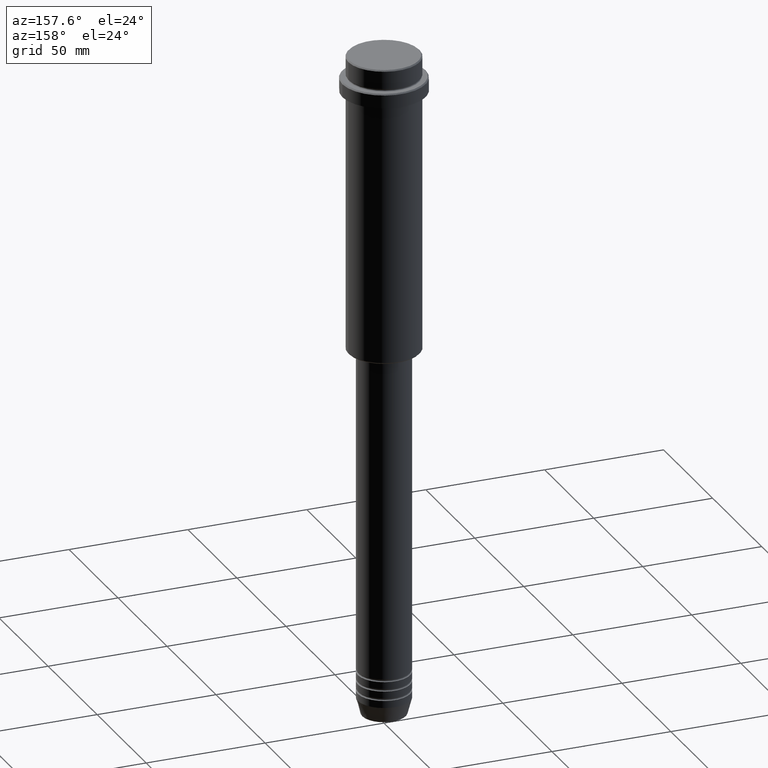
[diagram: clean part render]
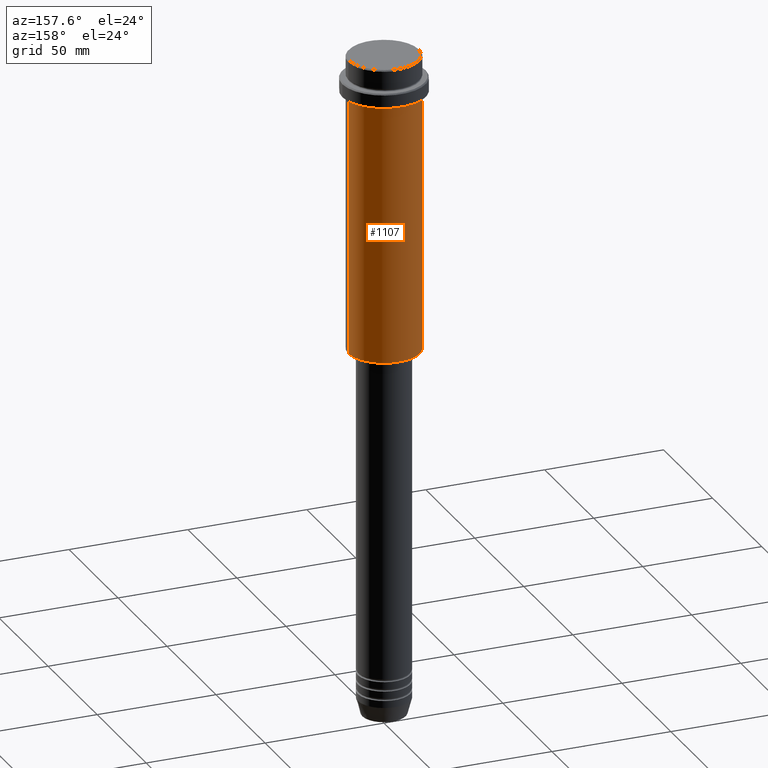
[diagram: same view with one face highlighted and labeled with its STEP entity id]
A machine part, auxiliary view. The second image highlights one B-rep face of the part: STEP entity #1107.
In plain terms, the highlighted cylindrical surface (partial cylindrical patch) has radius 15 mm, axis along (-0, -0, 1).
Its self-contained STEP definition (entity closure, byte-faithful):
#18 = VERTEX_POINT ( 'NONE', #50 ) ;
#50 = CARTESIAN_POINT ( 'NONE',  ( -15.00000000000000000, 1.836970198721029589E-15, -124.4999999999999574 ) ) ;
#58 = AXIS2_PLACEMENT_3D ( 'NONE', #97, #1291, #1298 ) ;
#97 = CARTESIAN_POINT ( 'NONE',  ( 0.000000000000000000, 0.000000000000000000, -124.4999999999999574 ) ) ;
#100 = DIRECTION ( 'NONE',  ( -0.000000000000000000, -0.000000000000000000, 1.000000000000000000 ) ) ;
#157 = EDGE_CURVE ( 'NONE', #999, #18, #675, .T. ) ;
#349 = EDGE_CURVE ( 'NONE', #637, #1409, #605, .T. ) ;
#391 = CARTESIAN_POINT ( 'NONE',  ( 15.00000000000000000, 0.000000000000000000, 0.000000000000000000 ) ) ;
#416 = DIRECTION ( 'NONE',  ( -0.000000000000000000, -0.000000000000000000, 1.000000000000000000 ) ) ;
#449 = AXIS2_PLACEMENT_3D ( 'NONE', #1005, #897, #930 ) ;
#533 = DIRECTION ( 'NONE',  ( 1.000000000000000000, 0.000000000000000000, 0.000000000000000000 ) ) ;
#546 = EDGE_CURVE ( 'NONE', #999, #637, #1168, .T. ) ;
#600 = LINE ( 'NONE', #1058, #997 ) ;
#605 = CIRCLE ( 'NONE', #449, 15.00000000000000178 ) ;
#637 = VERTEX_POINT ( 'NONE', #1206 ) ;
#639 = CARTESIAN_POINT ( 'NONE',  ( -15.00000000000000355, 1.836970198721029983E-15, -16.00000000000000000 ) ) ;
#675 = CIRCLE ( 'NONE', #58, 15.00000000000000000 ) ;
#692 = ORIENTED_EDGE ( 'NONE', *, *, #349, .F. ) ;
#801 = ORIENTED_EDGE ( 'NONE', *, *, #157, .T. ) ;
#851 = DIRECTION ( 'NONE',  ( -0.000000000000000000, -0.000000000000000000, 1.000000000000000000 ) ) ;
#869 = CARTESIAN_POINT ( 'NONE',  ( 0.000000000000000000, 0.000000000000000000, 0.000000000000000000 ) ) ;
#881 = VECTOR ( 'NONE', #416, 1000.000000000000000 ) ;
#894 = EDGE_CURVE ( 'NONE', #18, #1409, #600, .T. ) ;
#897 = DIRECTION ( 'NONE',  ( -0.000000000000000000, -0.000000000000000000, 1.000000000000000000 ) ) ;
#930 = DIRECTION ( 'NONE',  ( 1.000000000000000000, 0.000000000000000000, 0.000000000000000000 ) ) ;
#965 = EDGE_LOOP ( 'NONE', ( #801, #1057, #692, #1052 ) ) ;
#997 = VECTOR ( 'NONE', #851, 1000.000000000000000 ) ;
#999 = VERTEX_POINT ( 'NONE', #1163 ) ;
#1005 = CARTESIAN_POINT ( 'NONE',  ( 0.000000000000000000, 0.000000000000000000, -16.00000000000000000 ) ) ;
#1052 = ORIENTED_EDGE ( 'NONE', *, *, #546, .F. ) ;
#1057 = ORIENTED_EDGE ( 'NONE', *, *, #894, .T. ) ;
#1058 = CARTESIAN_POINT ( 'NONE',  ( -15.00000000000000000, 1.836970198721029589E-15, 0.000000000000000000 ) ) ;
#1107 = ADVANCED_FACE ( 'NONE', ( #1318 ), #1416, .T. ) ;
#1163 = CARTESIAN_POINT ( 'NONE',  ( 15.00000000000000000, 0.000000000000000000, -124.4999999999999574 ) ) ;
#1168 = LINE ( 'NONE', #391, #881 ) ;
#1206 = CARTESIAN_POINT ( 'NONE',  ( 15.00000000000000178, 0.000000000000000000, -16.00000000000000000 ) ) ;
#1242 = AXIS2_PLACEMENT_3D ( 'NONE', #869, #100, #533 ) ;
#1291 = DIRECTION ( 'NONE',  ( -0.000000000000000000, -0.000000000000000000, 1.000000000000000000 ) ) ;
#1298 = DIRECTION ( 'NONE',  ( -1.000000000000000000, 0.000000000000000000, 0.000000000000000000 ) ) ;
#1318 = FACE_OUTER_BOUND ( 'NONE', #965, .T. ) ;
#1409 = VERTEX_POINT ( 'NONE', #639 ) ;
#1416 = CYLINDRICAL_SURFACE ( 'NONE', #1242, 15.00000000000000000 ) ;